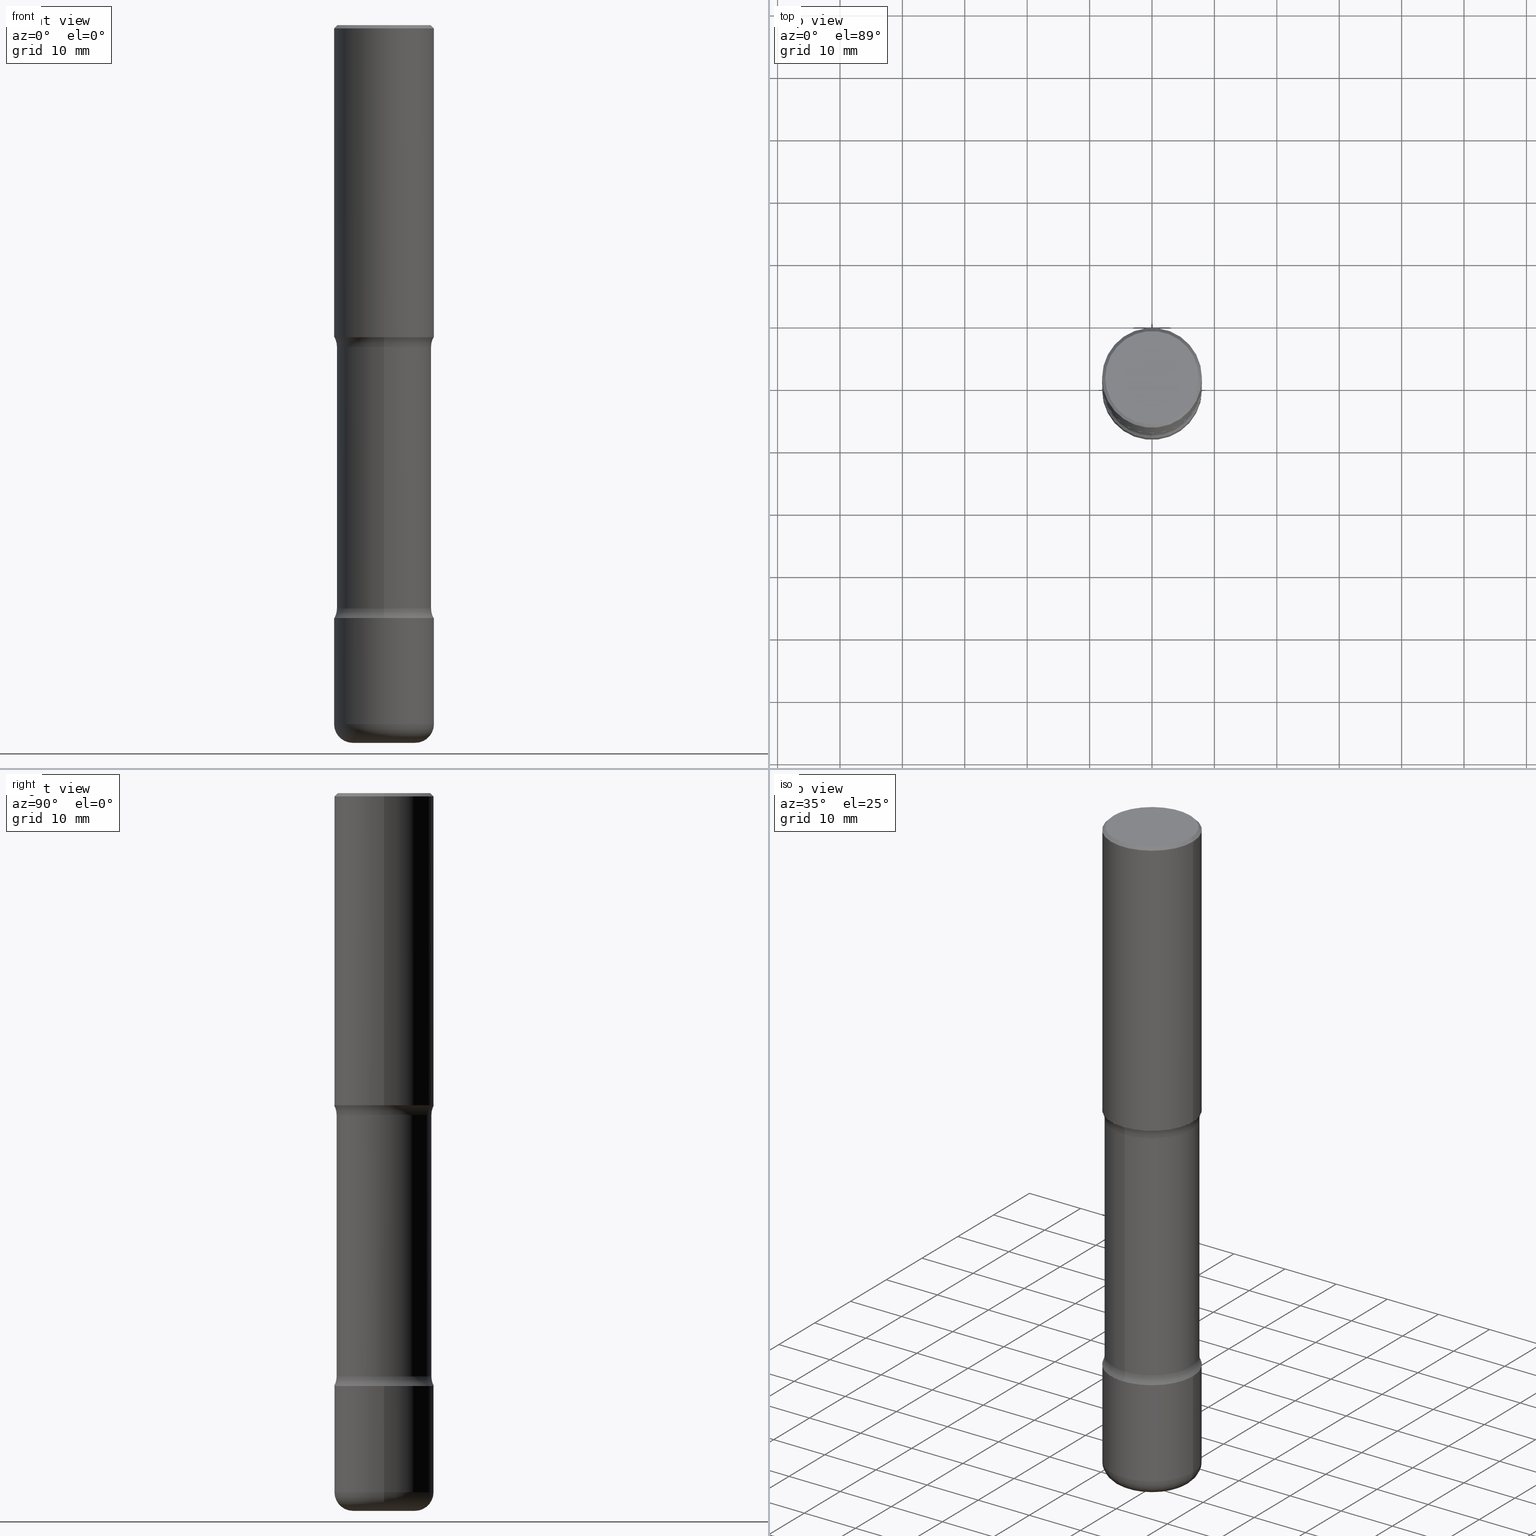
[diagram: canonical four-view strip — front | top / right | iso, engineering-drawing reading convention]
A machine part, canonical four-view strip (front | top / right | iso — engineering-drawing reading convention). The complete STEP part file that produces these views, byte-faithful:
ISO-10303-21;
HEADER;
FILE_DESCRIPTION (( 'STEP AP203' ),
    '1' );
FILE_NAME ('45198.STEP',
    '2024-03-02T05:17:04',
    ( '' ),
    ( '' ),
    'SwSTEP 2.0',
    'SolidWorks 2023',
    '' );
FILE_SCHEMA (( 'CONFIG_CONTROL_DESIGN' ));
ENDSEC;

DATA;
#1 = CONICAL_SURFACE ( 'NONE', #128, 0.3149499999999998967, 0.7853981633974460586 ) ;
#2 = CARTESIAN_POINT ( 'NONE',  ( -0.1968500000000003303, -1.378358007587743955E-14, -4.527599999999999625 ) ) ;
#3 = AXIS2_PLACEMENT_3D ( 'NONE', #164, #132, #212 ) ;
#4 = APPROVAL ( #181, 'UNSPECIFIED' ) ;
#5 = LINE ( 'NONE', #83, #294 ) ;
#6 = FACE_OUTER_BOUND ( 'NONE', #353, .T. ) ;
#7 = DIRECTION ( 'NONE',  ( 1.000000000000000000, -6.982962677686263555E-15, 0.000000000000000000 ) ) ;
#8 = CARTESIAN_POINT ( 'NONE',  ( 2.960776175339024669E-15, 0.4239999999999926605, -2.029599079371134263 ) ) ;
#9 = CARTESIAN_POINT ( 'NONE',  ( -0.3149500000000000077, 2.237854346276435590E-15, -1.549218606675782676E-29 ) ) ;
#10 = DIRECTION ( 'NONE',  ( -1.000000000000000000, 6.982962677686265922E-15, -4.876176775795935793E-29 ) ) ;
#11 = CALENDAR_DATE ( 2024, 2, 3 ) ;
#12 = AXIS2_PLACEMENT_3D ( 'NONE', #387, #171, #133 ) ;
#13 = AXIS2_PLACEMENT_3D ( 'NONE', #432, #486, #10 ) ;
#14 = CARTESIAN_POINT ( 'NONE',  ( 8.997126536204910970E-29, -1.284551220809632279E-14, -3.679100920628866511 ) ) ;
#15 = CARTESIAN_POINT ( 'NONE',  ( 2.199284095337338386E-15, 0.3149499999999932909, -1.968500000000000583 ) ) ;
#16 = VERTEX_POINT ( 'NONE', #106 ) ;
#17 = ORIENTED_EDGE ( 'NONE', *, *, #56, .T. ) ;
#18 = AXIS2_PLACEMENT_3D ( 'NONE', #535, #372, #489 ) ;
#19 = EDGE_CURVE ( 'NONE', #142, #243, #327, .T. ) ;
#20 = EDGE_LOOP ( 'NONE', ( #285, #306, #108, #412 ) ) ;
#21 = DIRECTION ( 'NONE',  ( 1.000000000000000000, -6.982962677686258033E-15, 0.000000000000000000 ) ) ;
#22 = VERTEX_POINT ( 'NONE', #364 ) ;
#23 = ADVANCED_FACE ( 'NONE', ( #425 ), #424, .F. ) ;
#24 = ORIENTED_EDGE ( 'NONE', *, *, #103, .T. ) ;
#25 = ADVANCED_FACE ( 'NONE', ( #421 ), #201, .T. ) ;
#26 = AXIS2_PLACEMENT_3D ( 'NONE', #8, #141, #476 ) ;
#27 = PRODUCT_DEFINITION_FORMATION_WITH_SPECIFIED_SOURCE ( 'ANY', '', #259, .NOT_KNOWN. ) ;
#28 = EDGE_CURVE ( 'NONE', #243, #251, #177, .T. ) ;
#29 = DIRECTION ( 'NONE',  ( 1.000000000000000000, -6.982962677686263555E-15, 0.000000000000000000 ) ) ;
#30 = APPROVAL ( #558, 'UNSPECIFIED' ) ;
#31 = CARTESIAN_POINT ( 'NONE',  ( 4.890937612370289799E-31, -6.982962677686315028E-17, -0.02000000000000006981 ) ) ;
#32 = ORIENTED_EDGE ( 'NONE', *, *, #381, .F. ) ;
#33 = CARTESIAN_POINT ( 'NONE',  ( -2.908851151055079880E-15, -0.4240000000000071489, -2.029599079371131598 ) ) ;
#34 = CARTESIAN_POINT ( 'NONE',  ( -0.3149500000000001743, -1.233550974868357771E-15, -1.968499999999999472 ) ) ;
#35 = VERTEX_POINT ( 'NONE', #374 ) ;
#36 = AXIS2_PLACEMENT_3D ( 'NONE', #70, #249, #509 ) ;
#37 = AXIS2_PLACEMENT_3D ( 'NONE', #114, #454, #279 ) ;
#38 = CARTESIAN_POINT ( 'NONE',  ( 4.867939274759828421E-29, -7.222899710640752209E-15, -2.029599079371132930 ) ) ;
#39 = DIRECTION ( 'NONE',  ( -0.7071067811865459074, 2.468850131082240100E-15, -0.7071067811865491270 ) ) ;
#40 = DIRECTION ( 'NONE',  ( -2.445468806185136597E-29, 3.491481338843145583E-15, 1.000000000000000000 ) ) ;
#41 = VERTEX_POINT ( 'NONE', #116 ) ;
#42 = ADVANCED_BREP_SHAPE_REPRESENTATION ( '45198', ( #110, #301, #123, #492 ), #483 ) ;
#43 = CARTESIAN_POINT ( 'NONE',  ( 0.3149500000000002298, -1.525812259887842266E-14, -3.740199999999999747 ) ) ;
#44 = AXIS2_PLACEMENT_3D ( 'NONE', #506, #40, #465 ) ;
#45 = CARTESIAN_POINT ( 'NONE',  ( 2.087905840628304834E-15, 0.2989999999999842784, -4.527600000000000513 ) ) ;
#46 = CARTESIAN_POINT ( 'NONE',  ( 0.1968500000000003303, -1.718262711284876708E-14, -4.527599999999999625 ) ) ;
#47 = CALENDAR_DATE ( 2024, 2, 3 ) ;
#48 = ORIENTED_EDGE ( 'NONE', *, *, #228, .T. ) ;
#49 = CLOSED_SHELL ( 'NONE', ( #304, #139, #25, #463, #451, #362 ) ) ;
#50 = FACE_OUTER_BOUND ( 'NONE', #247, .T. ) ;
#51 = SHAPE_DEFINITION_REPRESENTATION ( #466, #42 ) ;
#52 = AXIS2_PLACEMENT_3D ( 'NONE', #297, #477, #443 ) ;
#53 = CC_DESIGN_DATE_AND_TIME_ASSIGNMENT ( #84, #261, ( #153 ) ) ;
#54 = LENGTH_MEASURE_WITH_UNIT ( LENGTH_MEASURE( 0.02539999999999999897 ), #281 );
#55 = VERTEX_POINT ( 'NONE', #291 ) ;
#56 = EDGE_CURVE ( 'NONE', #280, #41, #75, .T. ) ;
#57 = CARTESIAN_POINT ( 'NONE',  ( 9.146542428893647141E-29, -1.305883850354113279E-14, -3.740199999999999747 ) ) ;
#58 = ORIENTED_EDGE ( 'NONE', *, *, #430, .F. ) ;
#59 = CARTESIAN_POINT ( 'NONE',  ( -2.908851151055039648E-15, -0.4240000000000128666, -3.679100920628864735 ) ) ;
#60 = CIRCLE ( 'NONE', #170, 0.3149500000000003408 ) ;
#61 = APPROVAL_PERSON_ORGANIZATION ( #551, #30, #257 ) ;
#62 = VERTEX_POINT ( 'NONE', #163 ) ;
#63 = DIRECTION ( 'NONE',  ( 2.507091165645431514E-29, -3.403234612769116586E-15, -1.000000000000000000 ) ) ;
#64 = ORIENTED_EDGE ( 'NONE', *, *, #407, .T. ) ;
#65 = ORIENTED_EDGE ( 'NONE', *, *, #348, .T. ) ;
#66 = CARTESIAN_POINT ( 'NONE',  ( 1.078329470087335798E-28, -1.539568696362884818E-14, -4.409499999999999531 ) ) ;
#67 = ORIENTED_EDGE ( 'NONE', *, *, #282, .T. ) ;
#68 = AXIS2_PLACEMENT_3D ( 'NONE', #81, #256, #392 ) ;
#69 = LOCAL_TIME ( 0, 17, 4.000000000000000000, #337 ) ;
#70 = CARTESIAN_POINT ( 'NONE',  ( 2.960776175339066873E-15, 0.4239999999999872204, -3.679100920628867843 ) ) ;
#71 = ORIENTED_EDGE ( 'NONE', *, *, #287, .F. ) ;
#72 = PLANE ( 'NONE',  #514 ) ;
#73 = DIRECTION ( 'NONE',  ( 6.982962677686265133E-15, 1.000000000000000000, -3.403234612769116586E-15 ) ) ;
#74 = ORIENTED_EDGE ( 'NONE', *, *, #183, .T. ) ;
#75 = CIRCLE ( 'NONE', #366, 0.3149500000000002853 ) ;
#76 = AXIS2_PLACEMENT_3D ( 'NONE', #31, #376, #384 ) ;
#77 = DIRECTION ( 'NONE',  ( 2.507091165645431514E-29, -3.403234612769116586E-15, -1.000000000000000000 ) ) ;
#78 = ADVANCED_FACE ( 'NONE', ( #328 ), #72, .F. ) ;
#79 = CARTESIAN_POINT ( 'NONE',  ( -0.3149499999999998967, 2.129454468560425784E-15, -0.02000000000000006981 ) ) ;
#80 = PLANE ( 'NONE',  #213 ) ;
#81 = CARTESIAN_POINT ( 'NONE',  ( 9.146542428893647141E-29, -1.305883850354113279E-14, -3.740199999999999747 ) ) ;
#82 = CALENDAR_DATE ( 2024, 2, 3 ) ;
#83 = CARTESIAN_POINT ( 'NONE',  ( -0.3149500000000002853, 2.237854346276437562E-15, -1.549218606675783797E-29 ) ) ;
#84 = DATE_AND_TIME ( #478, #303 ) ;
#85 = CARTESIAN_POINT ( 'NONE',  ( -2.051288901333576903E-15, -0.2990000000000157532, -4.527599999999998737 ) ) ;
#86 = ADVANCED_FACE ( 'NONE', ( #288 ), #284, .T. ) ;
#87 = AXIS2_PLACEMENT_3D ( 'NONE', #59, #234, #192 ) ;
#88 = AXIS2_PLACEMENT_3D ( 'NONE', #221, #398, #276 ) ;
#89 = DIRECTION ( 'NONE',  ( 2.507091165645431514E-29, -3.403234612769116586E-15, -1.000000000000000000 ) ) ;
#90 = CIRCLE ( 'NONE', #543, 0.1968500000000003303 ) ;
#91 = CARTESIAN_POINT ( 'NONE',  ( 1.078329470087335798E-28, -1.539568696362884818E-14, -4.409499999999999531 ) ) ;
#92 = DIRECTION ( 'NONE',  ( -1.000000000000000000, 6.982962677686265922E-15, 0.000000000000000000 ) ) ;
#93 = PERSON_AND_ORGANIZATION_ROLE ( 'classification_officer' ) ;
#94 = ORIENTED_EDGE ( 'NONE', *, *, #130, .T. ) ;
#95 = CARTESIAN_POINT ( 'NONE',  ( 2.087905840628283535E-15, 0.2989999999999871094, -3.679100920628867399 ) ) ;
#96 = APPROVAL_ROLE ( '' ) ;
#97 = ORIENTED_EDGE ( 'NONE', *, *, #107, .F. ) ;
#98 = DIRECTION ( 'NONE',  ( 1.000000000000000000, -6.982962677686266711E-15, 0.000000000000000000 ) ) ;
#99 = SECURITY_CLASSIFICATION_LEVEL ( 'unclassified' ) ;
#100 = CIRCLE ( 'NONE', #418, 0.2949499999999998789 ) ;
#101 = ORIENTED_EDGE ( 'NONE', *, *, #522, .F. ) ;
#102 = CC_DESIGN_APPROVAL ( #4, ( #190 ) ) ;
#103 = EDGE_CURVE ( 'NONE', #35, #104, #338, .T. ) ;
#104 = VERTEX_POINT ( 'NONE', #34 ) ;
#105 = CC_DESIGN_PERSON_AND_ORGANIZATION_ASSIGNMENT ( #388, #342, ( #153 ) ) ;
#106 = CARTESIAN_POINT ( 'NONE',  ( -0.3149499999999998967, 2.129454468560425784E-15, -0.02000000000000006981 ) ) ;
#107 = EDGE_CURVE ( 'NONE', #16, #22, #278, .T. ) ;
#108 = ORIENTED_EDGE ( 'NONE', *, *, #28, .T. ) ;
#109 = CIRCLE ( 'NONE', #76, 0.3149499999999998967 ) ;
#110 = MANIFOLD_SOLID_BREP ( 'Body-Move/Copy2[1]', #49 ) ;
#111 = ORIENTED_EDGE ( 'NONE', *, *, #496, .T. ) ;
#112 = ADVANCED_FACE ( 'NONE', ( #203 ), #410, .F. ) ;
#113 = DIRECTION ( 'NONE',  ( 2.438088387897960049E-29, -3.491481338843145188E-15, -1.000000000000000000 ) ) ;
#114 = CARTESIAN_POINT ( 'NONE',  ( 0.000000000000000000, 0.000000000000000000, 0.000000000000000000 ) ) ;
#115 = ORIENTED_EDGE ( 'NONE', *, *, #461, .T. ) ;
#116 = CARTESIAN_POINT ( 'NONE',  ( 0.3149500000000002853, -1.759497105896613963E-14, -4.409499999999999531 ) ) ;
#117 = ORIENTED_EDGE ( 'NONE', *, *, #244, .T. ) ;
#118 = CIRCLE ( 'NONE', #68, 0.3149500000000002298 ) ;
#119 = DIRECTION ( 'NONE',  ( 6.860497997771531562E-15, 1.000000000000000000, 0.000000000000000000 ) ) ;
#120 = ORGANIZATION ( 'UNSPECIFIED', 'UNSPECIFIED', '' ) ;
#121 = EDGE_CURVE ( 'NONE', #22, #16, #109, .T. ) ;
#122 = DIRECTION ( 'NONE',  ( 6.982962677686265133E-15, 1.000000000000000000, -3.654646145370252101E-15 ) ) ;
#123 = MANIFOLD_SOLID_BREP ( 'Body-Move/Copy2[4]', #526 ) ;
#124 = ORIENTED_EDGE ( 'NONE', *, *, #310, .F. ) ;
#125 = CARTESIAN_POINT ( 'NONE',  ( 4.867939274759828421E-29, -7.222899710640752209E-15, -2.029599079371132930 ) ) ;
#126 = EDGE_LOOP ( 'NONE', ( #147, #534, #500, #195 ) ) ;
#127 = DIRECTION ( 'NONE',  ( 2.507091165645431514E-29, -3.403234612769116586E-15, -1.000000000000000000 ) ) ;
#128 = AXIS2_PLACEMENT_3D ( 'NONE', #523, #134, #300 ) ;
#129 = TOROIDAL_SURFACE ( 'NONE', #447, 0.4240000000000000435, 0.1250000000000000555 ) ;
#130 = EDGE_CURVE ( 'NONE', #394, #541, #233, .T. ) ;
#131 = CARTESIAN_POINT ( 'NONE',  ( 9.146542428893647141E-29, -1.305883850354113279E-14, -3.740199999999999747 ) ) ;
#132 = DIRECTION ( 'NONE',  ( 7.105427357601001859E-15, 1.000000000000000000, -3.491481338843145583E-15 ) ) ;
#133 = DIRECTION ( 'NONE',  ( 6.982962677686264344E-15, 1.000000000000000000, -3.469564049740290403E-15 ) ) ;
#134 = DIRECTION ( 'NONE',  ( 2.445468806185136597E-29, -3.491481338843145583E-15, -1.000000000000000000 ) ) ;
#135 = DIRECTION ( 'NONE',  ( -2.445468806185136597E-29, 3.491481338843145583E-15, 1.000000000000000000 ) ) ;
#136 = FACE_OUTER_BOUND ( 'NONE', #162, .T. ) ;
#137 = TOROIDAL_SURFACE ( 'NONE', #542, 0.1968500000000003303, 0.1180999999999999966 ) ;
#138 = CARTESIAN_POINT ( 'NONE',  ( 4.890937612370289799E-31, -6.982962677686315028E-17, -0.02000000000000006981 ) ) ;
#139 = ADVANCED_FACE ( 'NONE', ( #546 ), #137, .T. ) ;
#140 = DIRECTION ( 'NONE',  ( 2.507091165645431514E-29, -3.403234612769116586E-15, -1.000000000000000000 ) ) ;
#141 = DIRECTION ( 'NONE',  ( -1.000000000000000000, 6.982962677686265922E-15, -4.883557194083112901E-29 ) ) ;
#142 = VERTEX_POINT ( 'NONE', #378 ) ;
#143 = DIRECTION ( 'NONE',  ( -2.445468806185136597E-29, 3.491481338843145583E-15, 1.000000000000000000 ) ) ;
#144 = CIRCLE ( 'NONE', #36, 0.1250000000000000278 ) ;
#145 = ORIENTED_EDGE ( 'NONE', *, *, #348, .F. ) ;
#146 = LOCAL_TIME ( 0, 17, 4.000000000000000000, #494 ) ;
#147 = ORIENTED_EDGE ( 'NONE', *, *, #183, .F. ) ;
#148 = CYLINDRICAL_SURFACE ( 'NONE', #37, 0.3149500000000002853 ) ;
#149 = ORIENTED_EDGE ( 'NONE', *, *, #557, .F. ) ;
#150 = ORIENTED_EDGE ( 'NONE', *, *, #461, .F. ) ;
#151 = APPLICATION_PROTOCOL_DEFINITION ( 'international standard', 'config_control_design', 1994, #299 ) ;
#152 = AXIS2_PLACEMENT_3D ( 'NONE', #464, #511, #334 ) ;
#153 = PRODUCT_DEFINITION ( 'UNKNOWN', '', #27, #210 ) ;
#154 = EDGE_LOOP ( 'NONE', ( #499, #115, #512, #97 ) ) ;
#155 = ORIENTED_EDGE ( 'NONE', *, *, #56, .F. ) ;
#156 = CARTESIAN_POINT ( 'NONE',  ( 4.704729010719635388E-29, -7.029327740098088335E-15, -1.968499999999999472 ) ) ;
#157 = FACE_OUTER_BOUND ( 'NONE', #154, .T. ) ;
#158 = EDGE_LOOP ( 'NONE', ( #186, #452, #488, #326 ) ) ;
#159 = DIRECTION ( 'NONE',  ( -2.445468806185136597E-29, 3.491481338843145583E-15, 1.000000000000000000 ) ) ;
#160 = VECTOR ( 'NONE', #39, 39.37007874015748143 ) ;
#161 = DIRECTION ( 'NONE',  ( 1.000000000000000000, -6.982962677686265922E-15, 4.876176775795935793E-29 ) ) ;
#162 = EDGE_LOOP ( 'NONE', ( #117, #65 ) ) ;
#163 = CARTESIAN_POINT ( 'NONE',  ( -0.2949499999999998789, 2.094539655171994924E-15, 1.280553747028670770E-17 ) ) ;
#164 = CARTESIAN_POINT ( 'NONE',  ( -0.1968500000000003303, -1.399698358828508961E-14, -4.409499999999999531 ) ) ;
#165 = CARTESIAN_POINT ( 'NONE',  ( 1.107210456688382298E-28, -1.580803090974622389E-14, -4.527599999999999625 ) ) ;
#166 = ADVANCED_FACE ( 'NONE', ( #157 ), #467, .T. ) ;
#167 = DIRECTION ( 'NONE',  ( 1.000000000000000000, -6.982962677686267499E-15, 4.876176775795936353E-29 ) ) ;
#168 = EDGE_CURVE ( 'NONE', #209, #251, #144, .T. ) ;
#169 = FACE_OUTER_BOUND ( 'NONE', #365, .T. ) ;
#170 = AXIS2_PLACEMENT_3D ( 'NONE', #156, #63, #358 ) ;
#171 = DIRECTION ( 'NONE',  ( 2.507091165645431514E-29, -3.403234612769116586E-15, -1.000000000000000000 ) ) ;
#172 = UNCERTAINTY_MEASURE_WITH_UNIT (LENGTH_MEASURE( 1.000000000000000082E-05 ), #491, 'distance_accuracy_value', 'NONE');
#173 = CARTESIAN_POINT ( 'NONE',  ( 0.000000000000000000, 0.000000000000000000, 0.000000000000000000 ) ) ;
#174 = APPROVAL_STATUS ( 'not_yet_approved' ) ;
#175 = DIRECTION ( 'NONE',  ( -2.445468806185136597E-29, 3.491481338843145583E-15, 1.000000000000000000 ) ) ;
#176 = CARTESIAN_POINT ( 'NONE',  ( -0.3149500000000002298, -1.198940838730855371E-14, -3.740199999999999747 ) ) ;
#177 = CIRCLE ( 'NONE', #250, 0.2989999999999999880 ) ;
#178 = AXIS2_PLACEMENT_3D ( 'NONE', #254, #113, #472 ) ;
#179 = AXIS2_PLACEMENT_3D ( 'NONE', #131, #435, #305 ) ;
#180 = DIRECTION ( 'NONE',  ( 6.982962677686266711E-15, 1.000000000000000000, -3.654646145370252101E-15 ) ) ;
#181 = APPROVAL_STATUS ( 'not_yet_approved' ) ;
#182 = DIRECTION ( 'NONE',  ( 2.507091165645431514E-29, -3.403234612769116586E-15, -1.000000000000000000 ) ) ;
#183 = EDGE_CURVE ( 'NONE', #541, #394, #349, .T. ) ;
#184 = DATE_TIME_ROLE ( 'classification_date' ) ;
#185 = PERSON_AND_ORGANIZATION ( #230, #120 ) ;
#186 = ORIENTED_EDGE ( 'NONE', *, *, #407, .F. ) ;
#187 = CALENDAR_DATE ( 2024, 2, 3 ) ;
#188 = CIRCLE ( 'NONE', #504, 0.1249999999999998335 ) ;
#189 = ORIENTED_EDGE ( 'NONE', *, *, #540, .F. ) ;
#190 = SECURITY_CLASSIFICATION ( '', '', #99 ) ;
#191 = COORDINATED_UNIVERSAL_TIME_OFFSET ( 5, 0, .BEHIND. ) ;
#192 = DIRECTION ( 'NONE',  ( 6.860497997771532351E-15, 1.000000000000000000, 0.000000000000000000 ) ) ;
#193 = VERTEX_POINT ( 'NONE', #2 ) ;
#194 = CARTESIAN_POINT ( 'NONE',  ( 0.000000000000000000, 0.000000000000000000, 0.000000000000000000 ) ) ;
#195 = ORIENTED_EDGE ( 'NONE', *, *, #228, .F. ) ;
#196 = ORIENTED_EDGE ( 'NONE', *, *, #420, .F. ) ;
#197 = DIRECTION ( 'NONE',  ( 0.000000000000000000, 0.000000000000000000, 1.000000000000000000 ) ) ;
#198 = CIRCLE ( 'NONE', #88, 0.3149500000000003408 ) ;
#199 = CIRCLE ( 'NONE', #3, 0.1180999999999999689 ) ;
#200 = DIRECTION ( 'NONE',  ( 1.000000000000000000, -6.982962677686263555E-15, 4.883557194083111780E-29 ) ) ;
#201 = PLANE ( 'NONE',  #178 ) ;
#202 = PERSON_AND_ORGANIZATION_ROLE ( 'design_owner' ) ;
#203 = FACE_OUTER_BOUND ( 'NONE', #126, .T. ) ;
#204 = AXIS2_PLACEMENT_3D ( 'NONE', #138, #484, #92 ) ;
#205 = CIRCLE ( 'NONE', #350, 0.3149500000000002853 ) ;
#206 = CARTESIAN_POINT ( 'NONE',  ( 4.813905344975440153E-29, -6.872981015512730130E-15, -1.968499999999999472 ) ) ;
#207 = ORIENTED_EDGE ( 'NONE', *, *, #269, .F. ) ;
#208 = CARTESIAN_POINT ( 'NONE',  ( 8.993361466773209544E-29, -1.285090400181696271E-14, -3.679100920628866511 ) ) ;
#209 = VERTEX_POINT ( 'NONE', #265 ) ;
#210 = DESIGN_CONTEXT ( 'detailed design', #548, 'design' ) ;
#211 = PLANE ( 'NONE',  #13 ) ;
#212 = DIRECTION ( 'NONE',  ( -1.000000000000000000, 7.105427357601006592E-15, 0.000000000000000000 ) ) ;
#213 = AXIS2_PLACEMENT_3D ( 'NONE', #57, #320, #375 ) ;
#214 = TOROIDAL_SURFACE ( 'NONE', #453, 0.1968500000000003303, 0.1180999999999999966 ) ;
#215 = ADVANCED_FACE ( 'NONE', ( #296 ), #530, .F. ) ;
#216 = DIRECTION ( 'NONE',  ( 6.982962677686265922E-15, 1.000000000000000000, -3.403234612769116586E-15 ) ) ;
#217 = DATE_AND_TIME ( #82, #69 ) ;
#218 = CARTESIAN_POINT ( 'NONE',  ( 0.3149500000000000077, -2.199284095337289871E-15, 1.535751875536930130E-29 ) ) ;
#219 = EDGE_LOOP ( 'NONE', ( #450, #510 ) ) ;
#220 = DIRECTION ( 'NONE',  ( 1.000000000000000000, -6.982962677686263555E-15, 4.883557194083111780E-29 ) ) ;
#221 = CARTESIAN_POINT ( 'NONE',  ( 4.704729010719635388E-29, -7.029327740098088335E-15, -1.968499999999999472 ) ) ;
#222 = ORIENTED_EDGE ( 'NONE', *, *, #19, .F. ) ;
#223 = DIRECTION ( 'NONE',  ( 6.982962677686265922E-15, 1.000000000000000000, -3.403234612769116586E-15 ) ) ;
#224 = CIRCLE ( 'NONE', #253, 0.2949499999999998789 ) ;
#225 = CYLINDRICAL_SURFACE ( 'NONE', #367, 0.3149500000000002853 ) ;
#226 = APPROVAL_DATE_TIME ( #268, #4 ) ;
#227 = ADVANCED_FACE ( 'NONE', ( #525 ), #252, .F. ) ;
#228 = EDGE_CURVE ( 'NONE', #394, #485, #359, .T. ) ;
#229 = EDGE_LOOP ( 'NONE', ( #409, #493, #48, #497 ) ) ;
#230 = PERSON ( 'UNSPECIFIED', 'UNSPECIFIED', 'UNSPECIFIED', ('UNSPECIFIED'), ('UNSPECIFIED'), ('UNSPECIFIED') ) ;
#231 = VERTEX_POINT ( 'NONE', #43 ) ;
#232 = DIRECTION ( 'NONE',  ( 1.000000000000000000, -6.982962677686264344E-15, 0.000000000000000000 ) ) ;
#233 = CIRCLE ( 'NONE', #152, 0.2989999999999999880 ) ;
#234 = DIRECTION ( 'NONE',  ( 1.000000000000000000, -6.860497997771530774E-15, 4.841879590330361284E-29 ) ) ;
#235 = VECTOR ( 'NONE', #356, 39.37007874015748143 ) ;
#236 = ORIENTED_EDGE ( 'NONE', *, *, #475, .T. ) ;
#237 =( NAMED_UNIT ( * ) PLANE_ANGLE_UNIT ( ) SI_UNIT ( $, .RADIAN. ) );
#238 = FACE_OUTER_BOUND ( 'NONE', #544, .T. ) ;
#239 = ORIENTED_EDGE ( 'NONE', *, *, #244, .F. ) ;
#240 = DIRECTION ( 'NONE',  ( -2.445468806185136597E-29, 3.491481338843145583E-15, 1.000000000000000000 ) ) ;
#241 =( NAMED_UNIT ( * ) SI_UNIT ( $, .STERADIAN. ) SOLID_ANGLE_UNIT ( ) );
#242 = VECTOR ( 'NONE', #383, 39.37007874015748143 ) ;
#243 = VERTEX_POINT ( 'NONE', #404 ) ;
#244 = EDGE_CURVE ( 'NONE', #231, #503, #118, .T. ) ;
#245 = DIRECTION ( 'NONE',  ( -2.445468806185136597E-29, 3.491481338843145583E-15, 1.000000000000000000 ) ) ;
#246 = DIRECTION ( 'NONE',  ( 1.000000000000000000, -6.982962677686267499E-15, 4.876053491004736589E-29 ) ) ;
#247 = EDGE_LOOP ( 'NONE', ( #111, #539, #239, #149 ) ) ;
#248 = ADVANCED_FACE ( 'NONE', ( #341 ), #211, .F. ) ;
#249 = DIRECTION ( 'NONE',  ( -1.000000000000000000, 6.982962677686265922E-15, -4.883557194083112901E-29 ) ) ;
#250 = AXIS2_PLACEMENT_3D ( 'NONE', #208, #127, #122 ) ;
#251 = VERTEX_POINT ( 'NONE', #95 ) ;
#252 = TOROIDAL_SURFACE ( 'NONE', #379, 0.4240000000000000435, 0.1250000000000000555 ) ;
#253 = AXIS2_PLACEMENT_3D ( 'NONE', #520, #175, #438 ) ;
#254 = CARTESIAN_POINT ( 'NONE',  ( 1.107210456688382298E-28, -1.580803090974622389E-14, -4.527599999999999625 ) ) ;
#255 = CARTESIAN_POINT ( 'NONE',  ( 4.813905344975440153E-29, -6.872981015512730130E-15, -1.968499999999999472 ) ) ;
#256 = DIRECTION ( 'NONE',  ( -2.445468806185136597E-29, 3.491481338843145583E-15, 1.000000000000000000 ) ) ;
#257 = APPROVAL_ROLE ( '' ) ;
#258 = LINE ( 'NONE', #79, #160 ) ;
#259 = PRODUCT ( '45198', '45198', '', ( #417 ) ) ;
#260 = DIRECTION ( 'NONE',  ( -2.445468806185136597E-29, 3.491481338843145583E-15, 1.000000000000000000 ) ) ;
#261 = DATE_TIME_ROLE ( 'creation_date' ) ;
#262 = CLOSED_SHELL ( 'NONE', ( #86, #313, #309, #248, #78, #166 ) ) ;
#263 = APPROVAL ( #174, 'UNSPECIFIED' ) ;
#264 = CIRCLE ( 'NONE', #302, 0.1968500000000003303 ) ;
#265 = CARTESIAN_POINT ( 'NONE',  ( 2.199284095337382168E-15, 0.3149499999999871847, -3.740200000000000635 ) ) ;
#266 = DIRECTION ( 'NONE',  ( 2.507091165645431514E-29, -3.403234612769116586E-15, -1.000000000000000000 ) ) ;
#267 = CARTESIAN_POINT ( 'NONE',  ( 8.997126536204910970E-29, -1.284551220809632279E-14, -3.679100920628866511 ) ) ;
#268 = DATE_AND_TIME ( #187, #462 ) ;
#269 = EDGE_CURVE ( 'NONE', #394, #251, #336, .T. ) ;
#270 = LINE ( 'NONE', #9, #235 ) ;
#271 = EDGE_CURVE ( 'NONE', #62, #439, #224, .T. ) ;
#272 = CONICAL_SURFACE ( 'NONE', #204, 0.3149499999999998967, 0.7853981633974460586 ) ;
#273 = CARTESIAN_POINT ( 'NONE',  ( 9.146542428893647141E-29, -1.305883850354113279E-14, -3.740199999999999747 ) ) ;
#274 = DATE_AND_TIME ( #11, #146 ) ;
#275 = ORIENTED_EDGE ( 'NONE', *, *, #430, .T. ) ;
#276 = DIRECTION ( 'NONE',  ( 6.982962677686265922E-15, 1.000000000000000000, -3.469564049740289220E-15 ) ) ;
#277 = ORIENTED_EDGE ( 'NONE', *, *, #552, .T. ) ;
#278 = CIRCLE ( 'NONE', #515, 0.3149499999999998967 ) ;
#279 = DIRECTION ( 'NONE',  ( 1.000000000000000000, -6.982962677686267499E-15, 4.876176775795936353E-29 ) ) ;
#280 = VERTEX_POINT ( 'NONE', #351 ) ;
#281 =( LENGTH_UNIT ( ) NAMED_UNIT ( * ) SI_UNIT ( $, .METRE. ) );
#282 = EDGE_CURVE ( 'NONE', #142, #209, #554, .T. ) ;
#283 = ORIENTED_EDGE ( 'NONE', *, *, #287, .T. ) ;
#284 = CYLINDRICAL_SURFACE ( 'NONE', #44, 0.3149500000000000077 ) ;
#285 = ORIENTED_EDGE ( 'NONE', *, *, #282, .F. ) ;
#286 = DIRECTION ( 'NONE',  ( 1.000000000000000000, -6.982962677686266711E-15, 4.876176775795936353E-29 ) ) ;
#287 = EDGE_CURVE ( 'NONE', #209, #142, #436, .T. ) ;
#288 = FACE_OUTER_BOUND ( 'NONE', #317, .T. ) ;
#289 = DIRECTION ( 'NONE',  ( 1.000000000000000000, -6.982962677686266711E-15, 0.000000000000000000 ) ) ;
#290 = EDGE_CURVE ( 'NONE', #280, #503, #5, .T. ) ;
#291 = CARTESIAN_POINT ( 'NONE',  ( -2.160713844398098792E-15, -0.3149500000000073907, -1.968499999999998362 ) ) ;
#292 = DIRECTION ( 'NONE',  ( 1.000000000000000000, -6.982962677686265922E-15, 0.000000000000000000 ) ) ;
#293 = FACE_OUTER_BOUND ( 'NONE', #399, .T. ) ;
#294 = VECTOR ( 'NONE', #517, 39.37007874015748143 ) ;
#295 = LOCAL_TIME ( 0, 17, 4.000000000000000000, #191 ) ;
#296 = FACE_OUTER_BOUND ( 'NONE', #545, .T. ) ;
#297 = CARTESIAN_POINT ( 'NONE',  ( 9.146542428893647141E-29, -1.305883850354113279E-14, -3.740199999999999747 ) ) ;
#298 = CC_DESIGN_PERSON_AND_ORGANIZATION_ASSIGNMENT ( #547, #202, ( #259 ) ) ;
#299 = APPLICATION_CONTEXT ( 'configuration controlled 3d designs of mechanical parts and assemblies' ) ;
#300 = DIRECTION ( 'NONE',  ( -1.000000000000000000, 6.982962677686265922E-15, 0.000000000000000000 ) ) ;
#301 = MANIFOLD_SOLID_BREP ( 'Body-Move/Copy2[2]', #262 ) ;
#302 = AXIS2_PLACEMENT_3D ( 'NONE', #165, #473, #289 ) ;
#303 = LOCAL_TIME ( 0, 17, 4.000000000000000000, #521 ) ;
#304 = ADVANCED_FACE ( 'NONE', ( #50 ), #225, .T. ) ;
#305 = DIRECTION ( 'NONE',  ( -6.982962677686265922E-15, -1.000000000000000000, 3.403234612769116586E-15 ) ) ;
#306 = ORIENTED_EDGE ( 'NONE', *, *, #19, .T. ) ;
#307 = DIRECTION ( 'NONE',  ( 2.507091165645430954E-29, -3.403234612769116586E-15, -1.000000000000000000 ) ) ;
#308 = ORIENTED_EDGE ( 'NONE', *, *, #540, .T. ) ;
#309 = ADVANCED_FACE ( 'NONE', ( #344 ), #1, .T. ) ;
#310 = EDGE_CURVE ( 'NONE', #35, #22, #480, .T. ) ;
#311 = AXIS2_PLACEMENT_3D ( 'NONE', #469, #513, #474 ) ;
#312 = EDGE_LOOP ( 'NONE', ( #369, #64, #323, #196 ) ) ;
#313 = ADVANCED_FACE ( 'NONE', ( #346 ), #272, .T. ) ;
#314 = VERTEX_POINT ( 'NONE', #46 ) ;
#315 = DIRECTION ( 'NONE',  ( -2.445468806185136877E-29, 3.491481338843145188E-15, 1.000000000000000000 ) ) ;
#316 = COORDINATED_UNIVERSAL_TIME_OFFSET ( 5, 0, .BEHIND. ) ;
#317 = EDGE_LOOP ( 'NONE', ( #24, #413, #490, #124 ) ) ;
#318 = DIRECTION ( 'NONE',  ( -6.982962677686266711E-15, -1.000000000000000000, 3.491481338843145583E-15 ) ) ;
#319 = CIRCLE ( 'NONE', #339, 0.3149500000000002298 ) ;
#320 = DIRECTION ( 'NONE',  ( 2.438088387897960049E-29, -3.491481338843145188E-15, -1.000000000000000000 ) ) ;
#321 = ORIENTED_EDGE ( 'NONE', *, *, #496, .F. ) ;
#322 = EDGE_CURVE ( 'NONE', #55, #485, #198, .T. ) ;
#323 = ORIENTED_EDGE ( 'NONE', *, *, #121, .T. ) ;
#324 = ORIENTED_EDGE ( 'NONE', *, *, #322, .F. ) ;
#325 = DIRECTION ( 'NONE',  ( -2.445468806185136597E-29, 3.491481338843145583E-15, 1.000000000000000000 ) ) ;
#326 = ORIENTED_EDGE ( 'NONE', *, *, #107, .T. ) ;
#327 = CIRCLE ( 'NONE', #87, 0.1250000000000000278 ) ;
#328 = FACE_OUTER_BOUND ( 'NONE', #357, .T. ) ;
#329 = AXIS2_PLACEMENT_3D ( 'NONE', #206, #245, #459 ) ;
#330 = AXIS2_PLACEMENT_3D ( 'NONE', #415, #135, #446 ) ;
#331 = CARTESIAN_POINT ( 'NONE',  ( 0.000000000000000000, 0.000000000000000000, 0.000000000000000000 ) ) ;
#332 = EDGE_LOOP ( 'NONE', ( #222, #71, #448, #275 ) ) ;
#333 = PRODUCT_RELATED_PRODUCT_CATEGORY ( 'detail', '', ( #259 ) ) ;
#334 = DIRECTION ( 'NONE',  ( 6.982962677686266711E-15, 1.000000000000000000, -3.654646145370252101E-15 ) ) ;
#335 = CARTESIAN_POINT ( 'NONE',  ( 0.1968500000000003303, -1.677028316673139453E-14, -4.409499999999999531 ) ) ;
#336 = LINE ( 'NONE', #45, #390 ) ;
#337 = COORDINATED_UNIVERSAL_TIME_OFFSET ( 5, 0, .BEHIND. ) ;
#338 = CIRCLE ( 'NONE', #329, 0.3149500000000001743 ) ;
#339 = AXIS2_PLACEMENT_3D ( 'NONE', #273, #431, #232 ) ;
#340 = CC_DESIGN_APPROVAL ( #263, ( #27 ) ) ;
#341 = FACE_OUTER_BOUND ( 'NONE', #219, .T. ) ;
#342 = PERSON_AND_ORGANIZATION_ROLE ( 'creator' ) ;
#343 = CARTESIAN_POINT ( 'NONE',  ( -2.106001372865868613E-15, -0.2990000000000072600, -2.029599079371131598 ) ) ;
#344 = FACE_OUTER_BOUND ( 'NONE', #158, .T. ) ;
#345 = APPROVAL_ROLE ( '' ) ;
#346 = FACE_OUTER_BOUND ( 'NONE', #312, .T. ) ;
#347 = CARTESIAN_POINT ( 'NONE',  ( 1.112062601272285917E-28, -1.573854543763553237E-14, -4.527599999999999625 ) ) ;
#348 = EDGE_CURVE ( 'NONE', #503, #231, #319, .T. ) ;
#349 = CIRCLE ( 'NONE', #426, 0.2989999999999999880 ) ;
#350 = AXIS2_PLACEMENT_3D ( 'NONE', #533, #401, #7 ) ;
#351 = CARTESIAN_POINT ( 'NONE',  ( -0.3149500000000002853, -1.315783261735241220E-14, -4.409499999999999531 ) ) ;
#352 = DATE_AND_TIME ( #47, #295 ) ;
#353 = EDGE_LOOP ( 'NONE', ( #360, #17, #460, #145 ) ) ;
#354 = DIRECTION ( 'NONE',  ( 6.982962677686265922E-15, 1.000000000000000000, -3.403234612769116586E-15 ) ) ;
#355 = CARTESIAN_POINT ( 'NONE',  ( 0.3149500000000002853, -2.199284095337291843E-15, 1.535751875536931531E-29 ) ) ;
#356 = DIRECTION ( 'NONE',  ( -2.445468806185136877E-29, 3.491481338843145188E-15, 1.000000000000000000 ) ) ;
#357 = EDGE_LOOP ( 'NONE', ( #405, #150 ) ) ;
#358 = DIRECTION ( 'NONE',  ( 6.982962677686265922E-15, 1.000000000000000000, -3.469564049740289220E-15 ) ) ;
#359 = CIRCLE ( 'NONE', #26, 0.1249999999999998335 ) ;
#360 = ORIENTED_EDGE ( 'NONE', *, *, #290, .F. ) ;
#361 = LINE ( 'NONE', #355, #428 ) ;
#362 = ADVANCED_FACE ( 'NONE', ( #136 ), #80, .F. ) ;
#363 = APPROVAL_DATE_TIME ( #352, #263 ) ;
#364 = CARTESIAN_POINT ( 'NONE',  ( 0.3149499999999998967, -2.230543471175006266E-15, -0.02000000000000006981 ) ) ;
#365 = EDGE_LOOP ( 'NONE', ( #32, #324 ) ) ;
#366 = AXIS2_PLACEMENT_3D ( 'NONE', #429, #159, #29 ) ;
#367 = AXIS2_PLACEMENT_3D ( 'NONE', #173, #260, #167 ) ;
#368 = VECTOR ( 'NONE', #140, 39.37007874015748143 ) ;
#369 = ORIENTED_EDGE ( 'NONE', *, *, #371, .F. ) ;
#370 = DIRECTION ( 'NONE',  ( 1.000000000000000000, 0.000000000000000000, 0.000000000000000000 ) ) ;
#371 = EDGE_CURVE ( 'NONE', #439, #62, #100, .T. ) ;
#372 = DIRECTION ( 'NONE',  ( 2.507091165645431514E-29, -3.403234612769116586E-15, -1.000000000000000000 ) ) ;
#373 = CC_DESIGN_PERSON_AND_ORGANIZATION_ASSIGNMENT ( #449, #93, ( #190 ) ) ;
#374 = CARTESIAN_POINT ( 'NONE',  ( 0.3149500000000001743, -9.072265110850020000E-15, -1.968499999999999472 ) ) ;
#375 = DIRECTION ( 'NONE',  ( -1.000000000000000000, 6.982962677686265922E-15, -4.876176775795935793E-29 ) ) ;
#376 = DIRECTION ( 'NONE',  ( -2.445468806185136597E-29, 3.491481338843145583E-15, 1.000000000000000000 ) ) ;
#377 = APPLICATION_PROTOCOL_DEFINITION ( 'international standard', 'config_control_design', 1994, #548 ) ;
#378 = CARTESIAN_POINT ( 'NONE',  ( -2.160713844398054221E-15, -0.3149500000000132749, -3.740199999999998415 ) ) ;
#379 = AXIS2_PLACEMENT_3D ( 'NONE', #267, #441, #216 ) ;
#380 = APPROVAL_PERSON_ORGANIZATION ( #393, #263, #345 ) ;
#381 = EDGE_CURVE ( 'NONE', #485, #55, #60, .T. ) ;
#382 = DIRECTION ( 'NONE',  ( -2.445468806185136597E-29, 3.491481338843145583E-15, 1.000000000000000000 ) ) ;
#383 = DIRECTION ( 'NONE',  ( 0.7071067811865459074, -7.319954787623249734E-15, -0.7071067811865491270 ) ) ;
#384 = DIRECTION ( 'NONE',  ( 1.000000000000000000, -6.982962677686265922E-15, 0.000000000000000000 ) ) ;
#385 = DIRECTION ( 'NONE',  ( 6.982962677686266711E-15, 1.000000000000000000, -3.654646145370252101E-15 ) ) ;
#386 = DIMENSIONAL_EXPONENTS ( 1.000000000000000000, 0.000000000000000000, 0.000000000000000000, 0.000000000000000000, 0.000000000000000000, 0.000000000000000000, 0.000000000000000000 ) ;
#387 = CARTESIAN_POINT ( 'NONE',  ( 9.146542428893647141E-29, -1.305883850354113279E-14, -3.740199999999999747 ) ) ;
#388 = PERSON_AND_ORGANIZATION ( #230, #120 ) ;
#389 = ADVANCED_FACE ( 'NONE', ( #238 ), #414, .T. ) ;
#390 = VECTOR ( 'NONE', #266, 39.37007874015748143 ) ;
#391 = AXIS2_PLACEMENT_3D ( 'NONE', #335, #318, #21 ) ;
#392 = DIRECTION ( 'NONE',  ( 1.000000000000000000, -6.982962677686264344E-15, 0.000000000000000000 ) ) ;
#393 = PERSON_AND_ORGANIZATION ( #230, #120 ) ;
#394 = VERTEX_POINT ( 'NONE', #501 ) ;
#395 = DIRECTION ( 'NONE',  ( -2.445468806185136877E-29, 3.491481338843145188E-15, 1.000000000000000000 ) ) ;
#396 = FACE_OUTER_BOUND ( 'NONE', #406, .T. ) ;
#397 = EDGE_CURVE ( 'NONE', #541, #55, #188, .T. ) ;
#398 = DIRECTION ( 'NONE',  ( 2.507091165645431514E-29, -3.403234612769116586E-15, -1.000000000000000000 ) ) ;
#399 = EDGE_LOOP ( 'NONE', ( #94, #537, #58, #207 ) ) ;
#400 = CC_DESIGN_DATE_AND_TIME_ASSIGNMENT ( #274, #184, ( #190 ) ) ;
#401 = DIRECTION ( 'NONE',  ( -2.445468806185136597E-29, 3.491481338843145583E-15, 1.000000000000000000 ) ) ;
#402 = AXIS2_PLACEMENT_3D ( 'NONE', #125, #77, #560 ) ;
#403 = FACE_OUTER_BOUND ( 'NONE', #332, .T. ) ;
#404 = CARTESIAN_POINT ( 'NONE',  ( -2.106001372865825226E-15, -0.2990000000000128111, -3.679100920628865179 ) ) ;
#405 = ORIENTED_EDGE ( 'NONE', *, *, #103, .F. ) ;
#406 = EDGE_LOOP ( 'NONE', ( #189, #458, #277, #155 ) ) ;
#407 = EDGE_CURVE ( 'NONE', #439, #22, #553, .T. ) ;
#408 = PERSON_AND_ORGANIZATION_ROLE ( 'creator' ) ;
#409 = ORIENTED_EDGE ( 'NONE', *, *, #397, .F. ) ;
#410 = TOROIDAL_SURFACE ( 'NONE', #402, 0.4239999999999998770, 0.1249999999999998473 ) ;
#411 = AXIS2_PLACEMENT_3D ( 'NONE', #347, #519, #385 ) ;
#412 = ORIENTED_EDGE ( 'NONE', *, *, #168, .F. ) ;
#413 = ORIENTED_EDGE ( 'NONE', *, *, #468, .T. ) ;
#414 = CYLINDRICAL_SURFACE ( 'NONE', #18, 0.2989999999999999880 ) ;
#415 = CARTESIAN_POINT ( 'NONE',  ( 4.813905344975440153E-29, -6.872981015512730130E-15, -1.968499999999999472 ) ) ;
#416 = ORIENTED_EDGE ( 'NONE', *, *, #552, .F. ) ;
#417 = MECHANICAL_CONTEXT ( 'NONE', #299, 'mechanical' ) ;
#418 = AXIS2_PLACEMENT_3D ( 'NONE', #508, #434, #246 ) ;
#419 = CARTESIAN_POINT ( 'NONE',  ( 4.890937612370289799E-31, -6.982962677686315028E-17, -0.02000000000000006981 ) ) ;
#420 = EDGE_CURVE ( 'NONE', #62, #16, #258, .T. ) ;
#421 = FACE_OUTER_BOUND ( 'NONE', #427, .T. ) ;
#422 = ORIENTED_EDGE ( 'NONE', *, *, #475, .F. ) ;
#423 = DIRECTION ( 'NONE',  ( -2.438088387897960049E-29, 3.491481338843145188E-15, 1.000000000000000000 ) ) ;
#424 = TOROIDAL_SURFACE ( 'NONE', #481, 0.4239999999999998770, 0.1249999999999998473 ) ;
#425 = FACE_OUTER_BOUND ( 'NONE', #229, .T. ) ;
#426 = AXIS2_PLACEMENT_3D ( 'NONE', #550, #89, #180 ) ;
#427 = EDGE_LOOP ( 'NONE', ( #422, #455 ) ) ;
#428 = VECTOR ( 'NONE', #315, 39.37007874015748143 ) ;
#429 = CARTESIAN_POINT ( 'NONE',  ( 1.078329470087335798E-28, -1.539568696362884818E-14, -4.409499999999999531 ) ) ;
#430 = EDGE_CURVE ( 'NONE', #251, #243, #482, .T. ) ;
#431 = DIRECTION ( 'NONE',  ( -2.445468806185136597E-29, 3.491481338843145583E-15, 1.000000000000000000 ) ) ;
#432 = CARTESIAN_POINT ( 'NONE',  ( 2.059624841783563274E-15, 0.2949499999999998789, -1.023409652156634744E-15 ) ) ;
#433 = APPROVAL_DATE_TIME ( #217, #30 ) ;
#434 = DIRECTION ( 'NONE',  ( -2.445468806185136597E-29, 3.491481338843145583E-15, 1.000000000000000000 ) ) ;
#435 = DIRECTION ( 'NONE',  ( -2.507091165645430954E-29, 3.403234612769116586E-15, 1.000000000000000000 ) ) ;
#436 = CIRCLE ( 'NONE', #52, 0.3149500000000002298 ) ;
#437 = CC_DESIGN_APPROVAL ( #30, ( #153 ) ) ;
#438 = DIRECTION ( 'NONE',  ( 1.000000000000000000, -6.982962677686267499E-15, 4.876053491004736589E-29 ) ) ;
#439 = VERTEX_POINT ( 'NONE', #559 ) ;
#440 = DIRECTION ( 'NONE',  ( -2.445468806185136597E-29, 3.491481338843145583E-15, 1.000000000000000000 ) ) ;
#441 = DIRECTION ( 'NONE',  ( 2.507091165645431514E-29, -3.403234612769116586E-15, -1.000000000000000000 ) ) ;
#442 = PLANE ( 'NONE',  #529 ) ;
#443 = DIRECTION ( 'NONE',  ( 6.982962677686264344E-15, 1.000000000000000000, -3.469564049740290403E-15 ) ) ;
#444 = EDGE_CURVE ( 'NONE', #193, #314, #264, .T. ) ;
#445 = VECTOR ( 'NONE', #395, 39.37007874015748143 ) ;
#446 = DIRECTION ( 'NONE',  ( 1.000000000000000000, -6.982962677686263555E-15, 0.000000000000000000 ) ) ;
#447 = AXIS2_PLACEMENT_3D ( 'NONE', #14, #182, #354 ) ;
#448 = ORIENTED_EDGE ( 'NONE', *, *, #168, .T. ) ;
#449 = PERSON_AND_ORGANIZATION ( #230, #120 ) ;
#450 = ORIENTED_EDGE ( 'NONE', *, *, #271, .T. ) ;
#451 = ADVANCED_FACE ( 'NONE', ( #6 ), #148, .T. ) ;
#452 = ORIENTED_EDGE ( 'NONE', *, *, #271, .F. ) ;
#453 = AXIS2_PLACEMENT_3D ( 'NONE', #91, #440, #220 ) ;
#454 = DIRECTION ( 'NONE',  ( -2.445468806185136597E-29, 3.491481338843145583E-15, 1.000000000000000000 ) ) ;
#455 = ORIENTED_EDGE ( 'NONE', *, *, #444, .F. ) ;
#456 = CC_DESIGN_PERSON_AND_ORGANIZATION_ASSIGNMENT ( #185, #408, ( #27 ) ) ;
#457 = ORIENTED_EDGE ( 'NONE', *, *, #28, .F. ) ;
#458 = ORIENTED_EDGE ( 'NONE', *, *, #444, .T. ) ;
#459 = DIRECTION ( 'NONE',  ( 1.000000000000000000, -6.982962677686263555E-15, 0.000000000000000000 ) ) ;
#460 = ORIENTED_EDGE ( 'NONE', *, *, #557, .T. ) ;
#461 = EDGE_CURVE ( 'NONE', #104, #35, #536, .T. ) ;
#462 = LOCAL_TIME ( 0, 17, 4.000000000000000000, #316 ) ;
#463 = ADVANCED_FACE ( 'NONE', ( #396 ), #214, .T. ) ;
#464 = CARTESIAN_POINT ( 'NONE',  ( 4.857909972840073546E-29, -7.237262241822257624E-15, -2.029599079371132930 ) ) ;
#465 = DIRECTION ( 'NONE',  ( 1.000000000000000000, -6.982962677686266711E-15, 4.876176775795936353E-29 ) ) ;
#466 = PRODUCT_DEFINITION_SHAPE ( 'NONE', 'NONE',  #153 ) ;
#467 = CYLINDRICAL_SURFACE ( 'NONE', #471, 0.3149500000000000077 ) ;
#468 = EDGE_CURVE ( 'NONE', #104, #16, #270, .T. ) ;
#469 = CARTESIAN_POINT ( 'NONE',  ( 8.993361466773209544E-29, -1.285090400181696271E-14, -3.679100920628866511 ) ) ;
#470 = ADVANCED_FACE ( 'NONE', ( #403 ), #129, .F. ) ;
#471 = AXIS2_PLACEMENT_3D ( 'NONE', #331, #325, #286 ) ;
#472 = DIRECTION ( 'NONE',  ( -1.000000000000000000, 6.982962677686265922E-15, -4.876176775795935793E-29 ) ) ;
#473 = DIRECTION ( 'NONE',  ( -2.445468806185136597E-29, 3.491481338843145583E-15, 1.000000000000000000 ) ) ;
#474 = DIRECTION ( 'NONE',  ( 6.982962677686265133E-15, 1.000000000000000000, -3.654646145370252101E-15 ) ) ;
#475 = EDGE_CURVE ( 'NONE', #314, #193, #90, .T. ) ;
#476 = DIRECTION ( 'NONE',  ( -6.982962677686266711E-15, -1.000000000000000000, 0.000000000000000000 ) ) ;
#477 = DIRECTION ( 'NONE',  ( 2.507091165645431514E-29, -3.403234612769116586E-15, -1.000000000000000000 ) ) ;
#478 = CALENDAR_DATE ( 2024, 2, 3 ) ;
#479 = CYLINDRICAL_SURFACE ( 'NONE', #411, 0.2989999999999999880 ) ;
#480 = LINE ( 'NONE', #218, #445 ) ;
#481 = AXIS2_PLACEMENT_3D ( 'NONE', #38, #556, #73 ) ;
#482 = CIRCLE ( 'NONE', #311, 0.2989999999999999880 ) ;
#483 =( GEOMETRIC_REPRESENTATION_CONTEXT ( 3 ) GLOBAL_UNCERTAINTY_ASSIGNED_CONTEXT ( ( #172 ) ) GLOBAL_UNIT_ASSIGNED_CONTEXT ( ( #491, #237, #241 ) ) REPRESENTATION_CONTEXT ( 'NONE', 'WORKASPACE' ) );
#484 = DIRECTION ( 'NONE',  ( 2.445468806185136597E-29, -3.491481338843145583E-15, -1.000000000000000000 ) ) ;
#485 = VERTEX_POINT ( 'NONE', #15 ) ;
#486 = DIRECTION ( 'NONE',  ( 2.438088387897960049E-29, -3.491481338843145188E-15, -1.000000000000000000 ) ) ;
#487 = PERSON_AND_ORGANIZATION ( #230, #120 ) ;
#488 = ORIENTED_EDGE ( 'NONE', *, *, #420, .T. ) ;
#489 = DIRECTION ( 'NONE',  ( 6.982962677686266711E-15, 1.000000000000000000, -3.654646145370252101E-15 ) ) ;
#490 = ORIENTED_EDGE ( 'NONE', *, *, #121, .F. ) ;
#491 =( CONVERSION_BASED_UNIT ( 'INCH', #54 ) LENGTH_UNIT ( ) NAMED_UNIT ( #386 ) );
#492 = AXIS2_PLACEMENT_3D ( 'NONE', #194, #197, #370 ) ;
#493 = ORIENTED_EDGE ( 'NONE', *, *, #130, .F. ) ;
#494 = COORDINATED_UNIVERSAL_TIME_OFFSET ( 5, 0, .BEHIND. ) ;
#495 = ORIENTED_EDGE ( 'NONE', *, *, #269, .T. ) ;
#496 = EDGE_CURVE ( 'NONE', #41, #280, #205, .T. ) ;
#497 = ORIENTED_EDGE ( 'NONE', *, *, #381, .T. ) ;
#498 = ADVANCED_FACE ( 'NONE', ( #169 ), #442, .F. ) ;
#499 = ORIENTED_EDGE ( 'NONE', *, *, #468, .F. ) ;
#500 = ORIENTED_EDGE ( 'NONE', *, *, #322, .T. ) ;
#501 = CARTESIAN_POINT ( 'NONE',  ( 2.087905840628242119E-15, 0.2989999999999927716, -2.029599079371133818 ) ) ;
#502 = CARTESIAN_POINT ( 'NONE',  ( 4.813905344975440153E-29, -6.872981015512730130E-15, -1.968499999999999472 ) ) ;
#503 = VERTEX_POINT ( 'NONE', #176 ) ;
#504 = AXIS2_PLACEMENT_3D ( 'NONE', #33, #549, #119 ) ;
#505 = APPROVAL_PERSON_ORGANIZATION ( #487, #4, #96 ) ;
#506 = CARTESIAN_POINT ( 'NONE',  ( 0.000000000000000000, 0.000000000000000000, 0.000000000000000000 ) ) ;
#507 = CARTESIAN_POINT ( 'NONE',  ( 0.3149499999999998967, -2.230543471175006266E-15, -0.02000000000000006981 ) ) ;
#508 = CARTESIAN_POINT ( 'NONE',  ( -3.131554243005659264E-46, 4.471029511141341874E-32, 1.280553747030123384E-17 ) ) ;
#509 = DIRECTION ( 'NONE',  ( -6.982962677686267499E-15, -1.000000000000000000, 0.000000000000000000 ) ) ;
#510 = ORIENTED_EDGE ( 'NONE', *, *, #371, .T. ) ;
#511 = DIRECTION ( 'NONE',  ( 2.507091165645431514E-29, -3.403234612769116586E-15, -1.000000000000000000 ) ) ;
#512 = ORIENTED_EDGE ( 'NONE', *, *, #310, .T. ) ;
#513 = DIRECTION ( 'NONE',  ( 2.507091165645431514E-29, -3.403234612769116586E-15, -1.000000000000000000 ) ) ;
#514 = AXIS2_PLACEMENT_3D ( 'NONE', #502, #423, #161 ) ;
#515 = AXIS2_PLACEMENT_3D ( 'NONE', #419, #382, #292 ) ;
#516 = ADVANCED_FACE ( 'NONE', ( #293 ), #479, .T. ) ;
#517 = DIRECTION ( 'NONE',  ( -2.445468806185136877E-29, 3.491481338843145188E-15, 1.000000000000000000 ) ) ;
#518 = CIRCLE ( 'NONE', #391, 0.1180999999999999689 ) ;
#519 = DIRECTION ( 'NONE',  ( 2.507091165645431514E-29, -3.403234612769116586E-15, -1.000000000000000000 ) ) ;
#520 = CARTESIAN_POINT ( 'NONE',  ( -3.131554243005659264E-46, 4.471029511141341874E-32, 1.280553747030123384E-17 ) ) ;
#521 = COORDINATED_UNIVERSAL_TIME_OFFSET ( 5, 0, .BEHIND. ) ;
#522 = EDGE_CURVE ( 'NONE', #541, #243, #528, .T. ) ;
#523 = CARTESIAN_POINT ( 'NONE',  ( 4.890937612370289799E-31, -6.982962677686315028E-17, -0.02000000000000006981 ) ) ;
#524 = CC_DESIGN_PERSON_AND_ORGANIZATION_ASSIGNMENT ( #531, #538, ( #27 ) ) ;
#525 = FACE_OUTER_BOUND ( 'NONE', #20, .T. ) ;
#526 = CLOSED_SHELL ( 'NONE', ( #516, #227, #112, #23, #498, #215, #470, #389 ) ) ;
#527 = EDGE_LOOP ( 'NONE', ( #236, #308, #321, #416 ) ) ;
#528 = LINE ( 'NONE', #85, #368 ) ;
#529 = AXIS2_PLACEMENT_3D ( 'NONE', #255, #307, #223 ) ;
#530 = PLANE ( 'NONE',  #179 ) ;
#531 = PERSON_AND_ORGANIZATION ( #230, #120 ) ;
#532 = CARTESIAN_POINT ( 'NONE',  ( 1.107210456688382298E-28, -1.580803090974622389E-14, -4.527599999999999625 ) ) ;
#533 = CARTESIAN_POINT ( 'NONE',  ( 1.078329470087335798E-28, -1.539568696362884818E-14, -4.409499999999999531 ) ) ;
#534 = ORIENTED_EDGE ( 'NONE', *, *, #397, .T. ) ;
#535 = CARTESIAN_POINT ( 'NONE',  ( 1.112062601272285917E-28, -1.573854543763553237E-14, -4.527599999999999625 ) ) ;
#536 = CIRCLE ( 'NONE', #330, 0.3149500000000001743 ) ;
#537 = ORIENTED_EDGE ( 'NONE', *, *, #522, .T. ) ;
#538 = PERSON_AND_ORGANIZATION_ROLE ( 'design_supplier' ) ;
#539 = ORIENTED_EDGE ( 'NONE', *, *, #290, .T. ) ;
#540 = EDGE_CURVE ( 'NONE', #193, #280, #199, .T. ) ;
#541 = VERTEX_POINT ( 'NONE', #343 ) ;
#542 = AXIS2_PLACEMENT_3D ( 'NONE', #66, #240, #200 ) ;
#543 = AXIS2_PLACEMENT_3D ( 'NONE', #532, #143, #98 ) ;
#544 = EDGE_LOOP ( 'NONE', ( #101, #74, #495, #457 ) ) ;
#545 = EDGE_LOOP ( 'NONE', ( #283, #67 ) ) ;
#546 = FACE_OUTER_BOUND ( 'NONE', #527, .T. ) ;
#547 = PERSON_AND_ORGANIZATION ( #230, #120 ) ;
#548 = APPLICATION_CONTEXT ( 'configuration controlled 3d designs of mechanical parts and assemblies' ) ;
#549 = DIRECTION ( 'NONE',  ( 1.000000000000000000, -6.860497997771530774E-15, 4.841879590330361284E-29 ) ) ;
#550 = CARTESIAN_POINT ( 'NONE',  ( 4.857909972840073546E-29, -7.237262241822257624E-15, -2.029599079371132930 ) ) ;
#551 = PERSON_AND_ORGANIZATION ( #230, #120 ) ;
#552 = EDGE_CURVE ( 'NONE', #314, #41, #518, .T. ) ;
#553 = LINE ( 'NONE', #507, #242 ) ;
#554 = CIRCLE ( 'NONE', #12, 0.3149500000000002298 ) ;
#555 = CC_DESIGN_SECURITY_CLASSIFICATION ( #190, ( #27 ) ) ;
#556 = DIRECTION ( 'NONE',  ( 2.507091165645431514E-29, -3.403234612769116586E-15, -1.000000000000000000 ) ) ;
#557 = EDGE_CURVE ( 'NONE', #41, #231, #361, .T. ) ;
#558 = APPROVAL_STATUS ( 'not_yet_approved' ) ;
#559 = CARTESIAN_POINT ( 'NONE',  ( 0.2949499999999998789, -2.127023677808859286E-15, 1.280553747031587399E-17 ) ) ;
#560 = DIRECTION ( 'NONE',  ( 6.982962677686265133E-15, 1.000000000000000000, -3.403234612769116586E-15 ) ) ;
ENDSEC;
END-ISO-10303-21;
